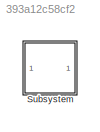
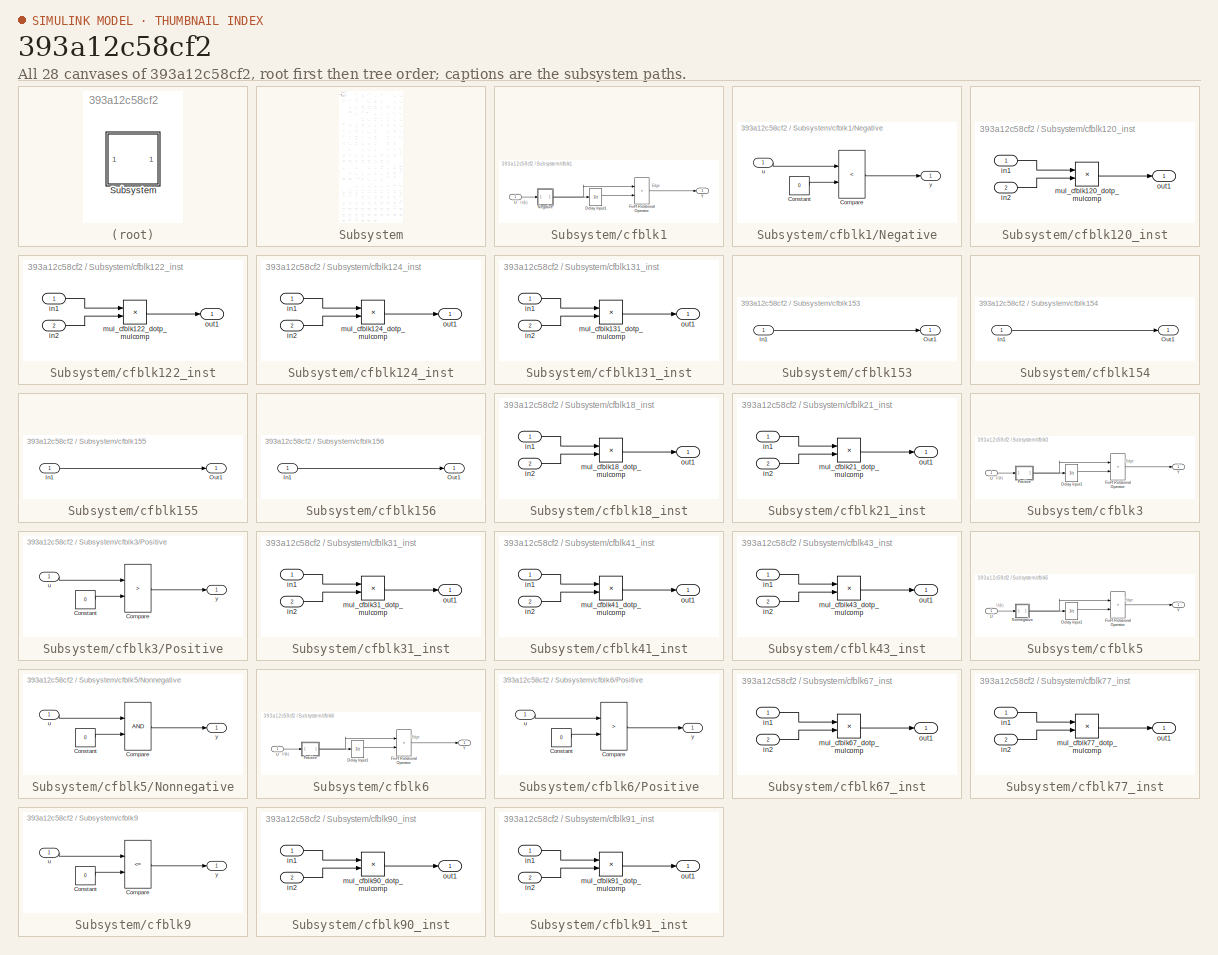
[diagram: thumbnail index - all 28 canvases of the model, root first then tree order]
MODEL slx_393a12c58cf2
KIND model
CONFIG AbsTol = auto
CONFIG EnableMultiTasking = off
CONFIG FixedStep = auto
CONFIG MaxStep = auto
CONFIG MinStep = auto
CONFIG RelTol = 1e-3
CONFIG SampleTimeConstraint = Unconstrained
CONFIG SolverName = VariableStepAuto
CONFIG StartTime = 0.0
CONFIG StopTime = 10.0
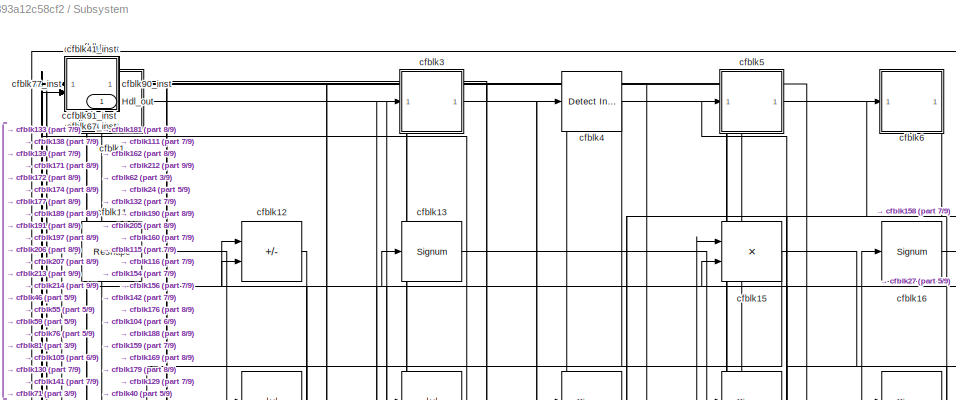
[diagram: Subsystem - part 1/9, top left region]
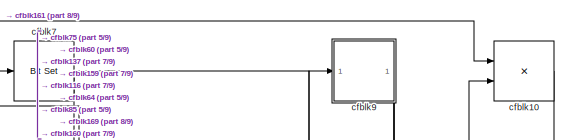
[diagram: Subsystem - part 2/9, top right region]
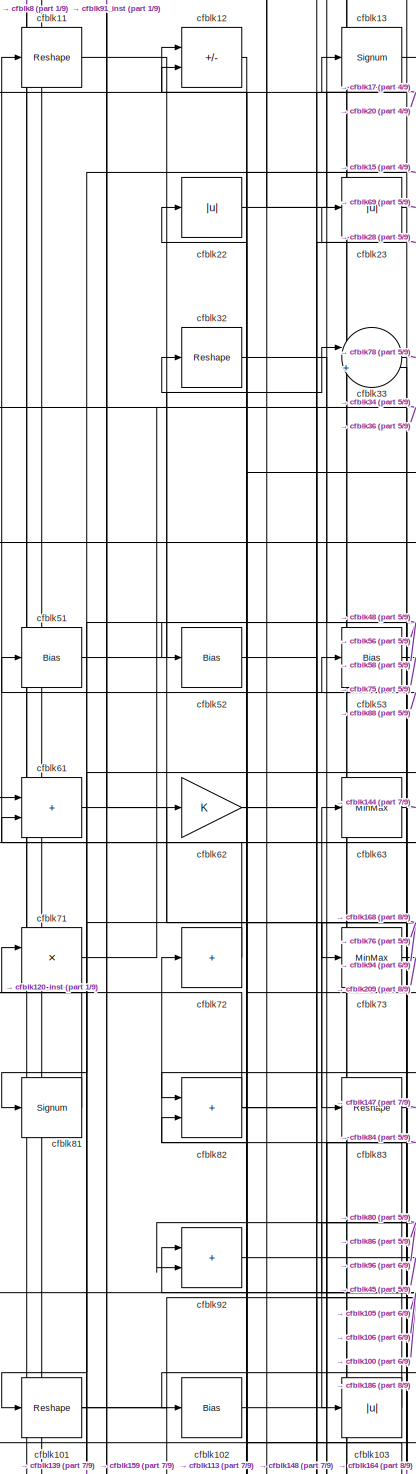
[diagram: Subsystem - part 3/9, top left region]
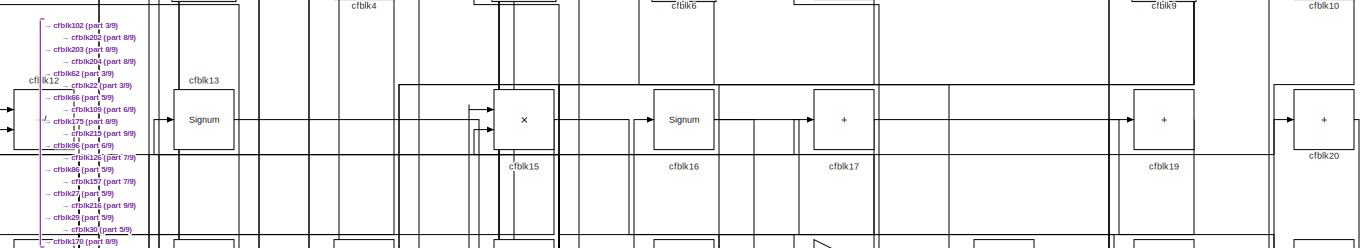
[diagram: Subsystem - part 4/9, full width, top band]
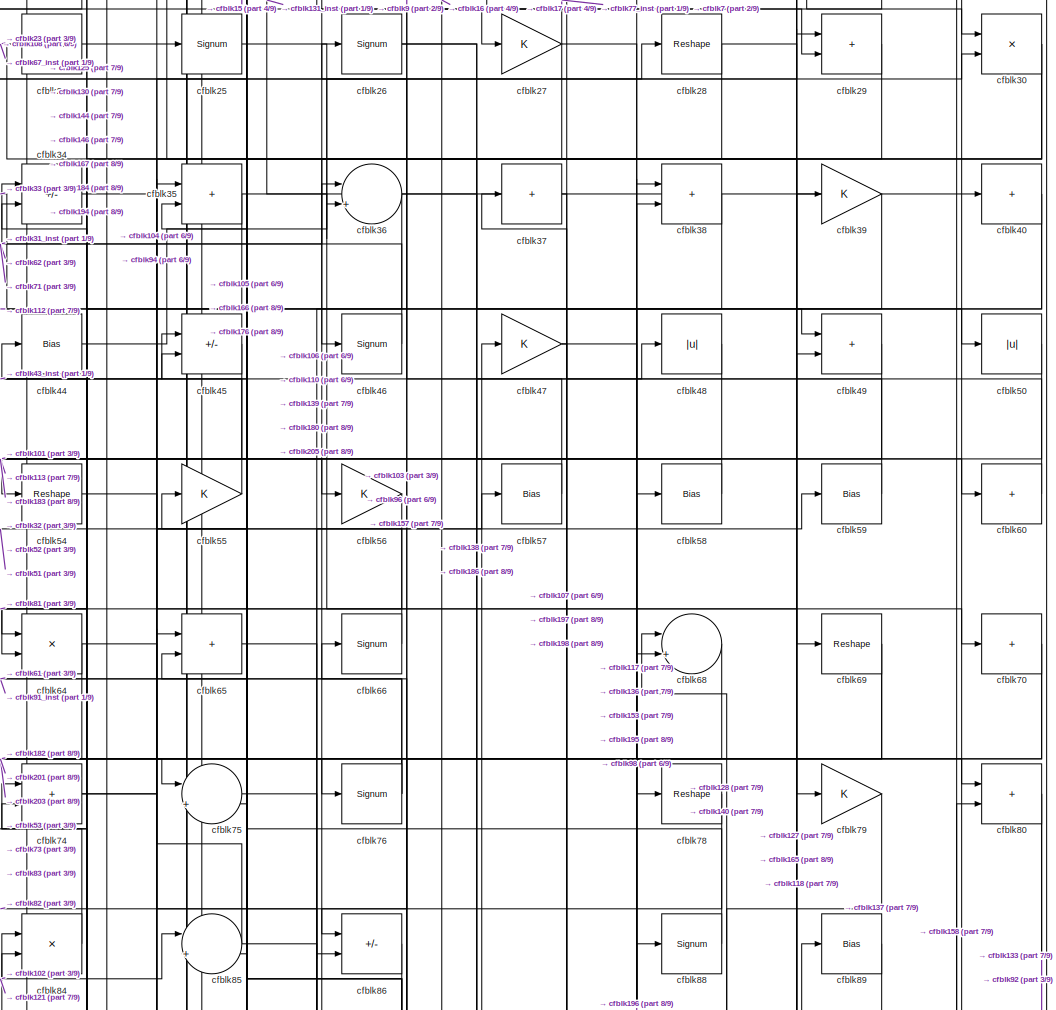
[diagram: Subsystem - part 5/9, top center region]
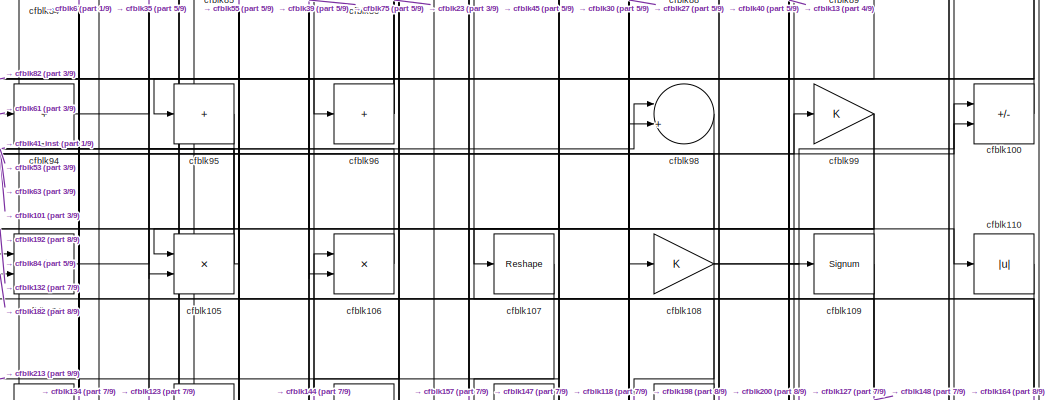
[diagram: Subsystem - part 6/9, central region]
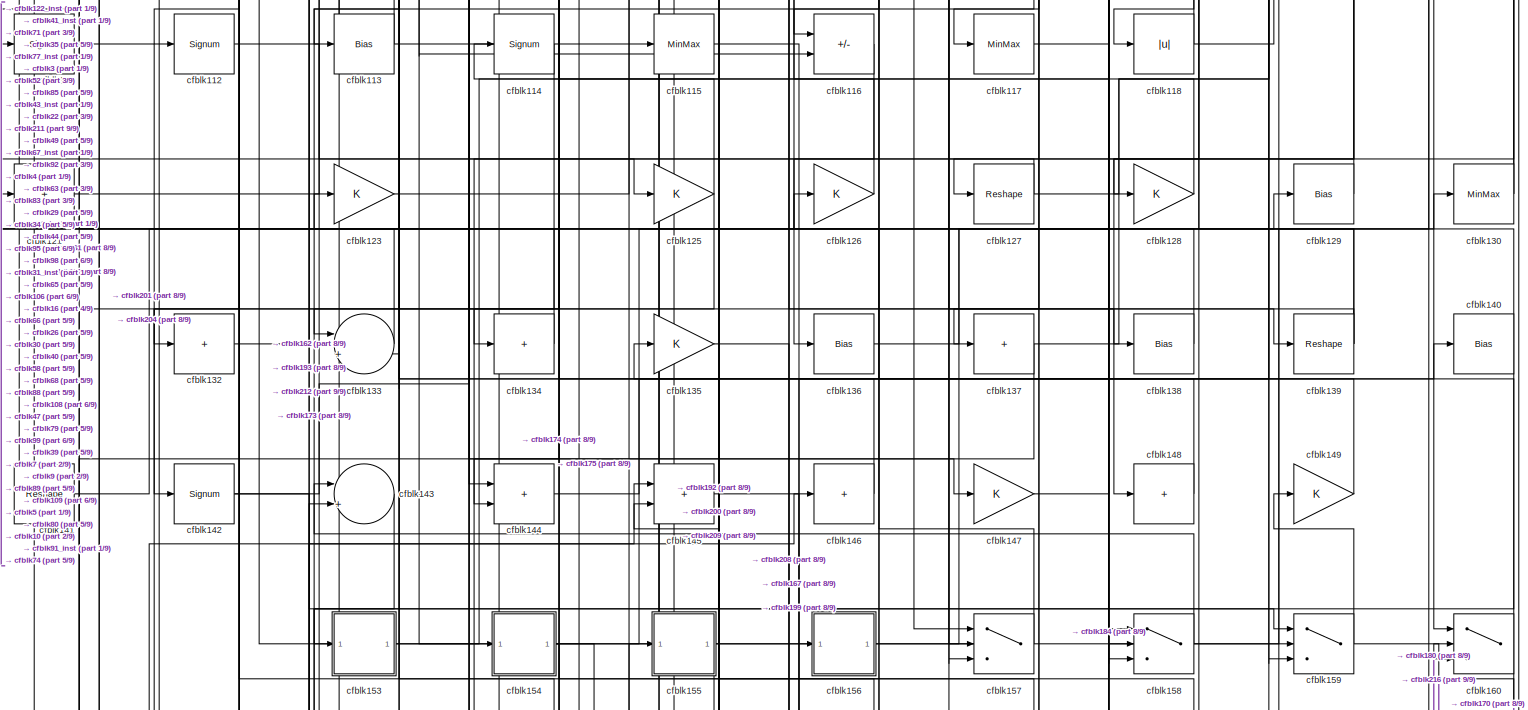
[diagram: Subsystem - part 7/9, full width, middle band]
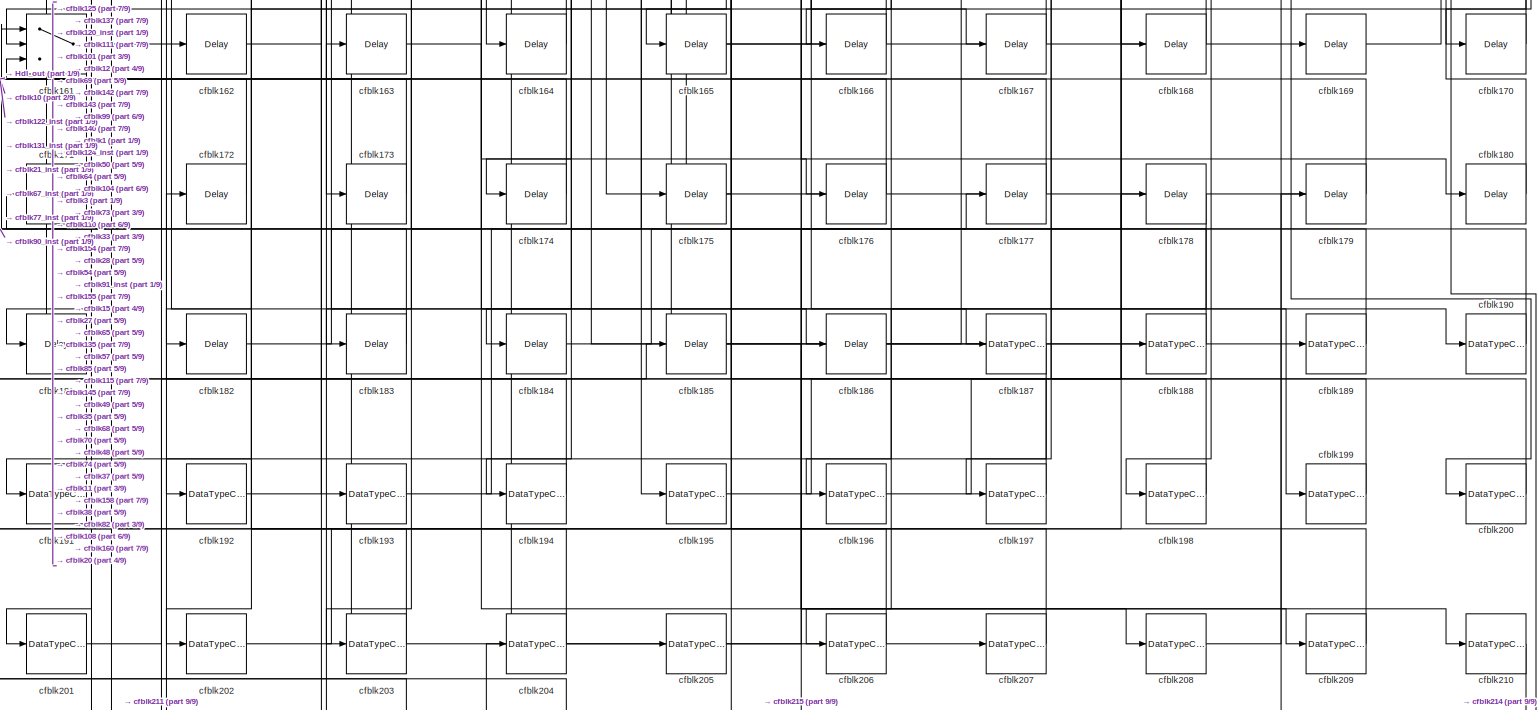
[diagram: Subsystem - part 8/9, full width, bottom band]
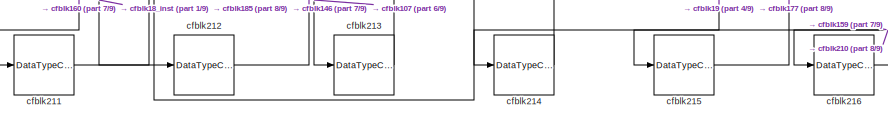
[diagram: Subsystem - part 9/9, bottom left region]
BLOCK [SubSystem] Subsystem
BLOCK [Outport] Subsystem/Hdl_out
  OutDataTypeStr = uint8
  SampleTime = 1
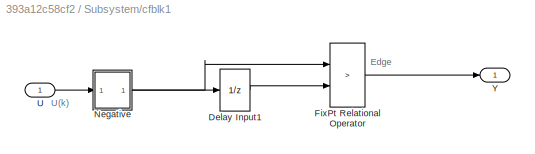
BLOCK [SubSystem] Subsystem/cfblk1
BLOCK [UnitDelay] Subsystem/cfblk1/Delay Input1
  Description = Store in Global RAM
  DisableCoverage = on
  HasFrameUpgradeWarning = on
  InitialCondition = vinit
  SampleTime = -1
BLOCK [RelationalOperator] Subsystem/cfblk1/FixPt Relational Operator
  InputSameDT = off
  Operator = >
  OutDataTypeStr = fixdt(0, 8)
  ZeroCross = off
BLOCK [SubSystem] Subsystem/cfblk1/Negative
BLOCK [RelationalOperator] Subsystem/cfblk1/Negative/Compare
  Operator = <
  OutDataTypeStr = boolean
  ZeroCross = off
BLOCK [Constant] Subsystem/cfblk1/Negative/Constant
  DisableCoverage = on
  OutDataTypeStr = Inherit: Inherit via back propagation
  PreserveConstantTs = on
  SampleTime = -1
  Value = 0
BLOCK [Inport] Subsystem/cfblk1/Negative/u
  OutDataTypeStr = uint8
  SampleTime = 1
BLOCK [Outport] Subsystem/cfblk1/Negative/y
  SampleTime = 1
BLOCK [Inport] Subsystem/cfblk1/U
  OutDataTypeStr = uint8
  SampleTime = 1
BLOCK [Outport] Subsystem/cfblk1/Y
  SampleTime = 1
BLOCK [Product] Subsystem/cfblk10
  Inputs = */
  OutDataTypeStr = uint8
  RndMeth = Zero
  SaturateOnIntegerOverflow = on
BLOCK [Sum] Subsystem/cfblk100
  IconShape = rectangular
  Inputs = +-
  OutDataTypeStr = uint8
BLOCK [Reshape] Subsystem/cfblk101
BLOCK [Bias] Subsystem/cfblk102
  Bias = 0.0
  SaturateOnIntegerOverflow = off
BLOCK [Abs] Subsystem/cfblk103
  OutDataTypeStr = uint8
  SaturateOnIntegerOverflow = off
BLOCK [Sum] Subsystem/cfblk104
  IconShape = rectangular
  Inputs = +-
  OutDataTypeStr = uint8
BLOCK [Product] Subsystem/cfblk105
  Inputs = */
  OutDataTypeStr = uint8
  RndMeth = Zero
  SaturateOnIntegerOverflow = on
BLOCK [Product] Subsystem/cfblk106
  Inputs = */
  OutDataTypeStr = uint8
  RndMeth = Zero
  SaturateOnIntegerOverflow = on
BLOCK [Reshape] Subsystem/cfblk107
BLOCK [Gain] Subsystem/cfblk108
  OutDataTypeStr = uint8
BLOCK [Signum] Subsystem/cfblk109
BLOCK [Reshape] Subsystem/cfblk11
BLOCK [Abs] Subsystem/cfblk110
  OutDataTypeStr = uint8
  SaturateOnIntegerOverflow = off
BLOCK [Signum] Subsystem/cfblk111
BLOCK [Signum] Subsystem/cfblk112
BLOCK [Bias] Subsystem/cfblk113
  Bias = 0.0
  SaturateOnIntegerOverflow = off
BLOCK [Signum] Subsystem/cfblk114
BLOCK [MinMax] Subsystem/cfblk115
  OutDataTypeStr = uint8
BLOCK [Sum] Subsystem/cfblk116
  IconShape = rectangular
  Inputs = +-
  OutDataTypeStr = uint8
BLOCK [MinMax] Subsystem/cfblk117
  OutDataTypeStr = uint8
BLOCK [Abs] Subsystem/cfblk118
  OutDataTypeStr = uint8
  SaturateOnIntegerOverflow = off
BLOCK [Sum] Subsystem/cfblk12
  IconShape = rectangular
  Inputs = +-
  OutDataTypeStr = uint8
BLOCK [SubSystem] Subsystem/cfblk120_inst
BLOCK [Inport] Subsystem/cfblk120_inst/in1
  OutDataTypeStr = uint8
  SampleTime = 1
BLOCK [Inport] Subsystem/cfblk120_inst/in2
  OutDataTypeStr = uint8
  Port = 2
  SampleTime = 1
BLOCK [Product] Subsystem/cfblk120_inst/mul_cfblk120_dotp_mulcomp
  Inputs = **
  OutDataTypeStr = uint8
  SampleTime = 1
BLOCK [Outport] Subsystem/cfblk120_inst/out1
  OutDataTypeStr = uint8
  SampleTime = 1
BLOCK [Sum] Subsystem/cfblk121
  IconShape = rectangular
  Inputs = +
  OutDataTypeStr = uint8
BLOCK [SubSystem] Subsystem/cfblk122_inst
BLOCK [Inport] Subsystem/cfblk122_inst/in1
  OutDataTypeStr = uint8
  SampleTime = 1
BLOCK [Inport] Subsystem/cfblk122_inst/in2
  OutDataTypeStr = uint8
  Port = 2
  SampleTime = 1
BLOCK [Product] Subsystem/cfblk122_inst/mul_cfblk122_dotp_mulcomp
  Inputs = **
  OutDataTypeStr = uint8
  SampleTime = 1
BLOCK [Outport] Subsystem/cfblk122_inst/out1
  OutDataTypeStr = uint8
  SampleTime = 1
BLOCK [Gain] Subsystem/cfblk123
  OutDataTypeStr = uint8
BLOCK [SubSystem] Subsystem/cfblk124_inst
BLOCK [Inport] Subsystem/cfblk124_inst/in1
  OutDataTypeStr = uint8
  SampleTime = 1
BLOCK [Inport] Subsystem/cfblk124_inst/in2
  OutDataTypeStr = uint8
  Port = 2
  SampleTime = 1
BLOCK [Product] Subsystem/cfblk124_inst/mul_cfblk124_dotp_mulcomp
  Inputs = **
  OutDataTypeStr = uint8
  SampleTime = 1
BLOCK [Outport] Subsystem/cfblk124_inst/out1
  OutDataTypeStr = uint8
  SampleTime = 1
BLOCK [Gain] Subsystem/cfblk125
  OutDataTypeStr = uint8
BLOCK [Gain] Subsystem/cfblk126
  OutDataTypeStr = uint8
BLOCK [Reshape] Subsystem/cfblk127
BLOCK [Gain] Subsystem/cfblk128
  OutDataTypeStr = uint8
BLOCK [Bias] Subsystem/cfblk129
  Bias = 0.0
  SaturateOnIntegerOverflow = off
BLOCK [Signum] Subsystem/cfblk13
BLOCK [MinMax] Subsystem/cfblk130
  OutDataTypeStr = uint8
BLOCK [SubSystem] Subsystem/cfblk131_inst
BLOCK [Inport] Subsystem/cfblk131_inst/in1
  OutDataTypeStr = uint8
  SampleTime = 1
BLOCK [Inport] Subsystem/cfblk131_inst/in2
  OutDataTypeStr = uint8
  Port = 2
  SampleTime = 1
BLOCK [Product] Subsystem/cfblk131_inst/mul_cfblk131_dotp_mulcomp
  Inputs = **
  OutDataTypeStr = uint8
  SampleTime = 1
BLOCK [Outport] Subsystem/cfblk131_inst/out1
  OutDataTypeStr = uint8
  SampleTime = 1
BLOCK [Sum] Subsystem/cfblk132
  IconShape = rectangular
  Inputs = +
  OutDataTypeStr = uint8
BLOCK [Sum] Subsystem/cfblk133
  Inputs = |++
  OutDataTypeStr = uint8
BLOCK [Sum] Subsystem/cfblk134
  IconShape = rectangular
  Inputs = +
  OutDataTypeStr = uint8
BLOCK [Gain] Subsystem/cfblk135
  OutDataTypeStr = uint8
BLOCK [Bias] Subsystem/cfblk136
  Bias = 0.0
  SaturateOnIntegerOverflow = off
BLOCK [Sum] Subsystem/cfblk137
  IconShape = rectangular
  Inputs = +
  OutDataTypeStr = uint8
BLOCK [Bias] Subsystem/cfblk138
  Bias = 0.0
  SaturateOnIntegerOverflow = off
BLOCK [Reshape] Subsystem/cfblk139
BLOCK [Bias] Subsystem/cfblk140
  Bias = 0.0
  SaturateOnIntegerOverflow = off
BLOCK [Reshape] Subsystem/cfblk141
BLOCK [Signum] Subsystem/cfblk142
BLOCK [Sum] Subsystem/cfblk143
  Inputs = |++
  OutDataTypeStr = uint8
BLOCK [Sum] Subsystem/cfblk144
  IconShape = rectangular
  OutDataTypeStr = uint8
BLOCK [Sum] Subsystem/cfblk145
  IconShape = rectangular
  OutDataTypeStr = uint8
BLOCK [Sum] Subsystem/cfblk146
  IconShape = rectangular
  Inputs = +
  OutDataTypeStr = uint8
BLOCK [Gain] Subsystem/cfblk147
  OutDataTypeStr = uint8
BLOCK [Sum] Subsystem/cfblk148
  IconShape = rectangular
  Inputs = +
  OutDataTypeStr = uint8
BLOCK [Gain] Subsystem/cfblk149
  OutDataTypeStr = uint8
BLOCK [Product] Subsystem/cfblk15
  Inputs = */
  OutDataTypeStr = uint8
  RndMeth = Zero
  SaturateOnIntegerOverflow = on
BLOCK [SubSystem] Subsystem/cfblk153
BLOCK [Inport] Subsystem/cfblk153/In1
  OutDataTypeStr = uint8
  PortDimensions = 1
  SampleTime = 1
BLOCK [Outport] Subsystem/cfblk153/Out1
  SampleTime = 1
BLOCK [SubSystem] Subsystem/cfblk154
BLOCK [Inport] Subsystem/cfblk154/In1
  OutDataTypeStr = uint8
  PortDimensions = 1
  SampleTime = 1
BLOCK [Outport] Subsystem/cfblk154/Out1
  SampleTime = 1
BLOCK [SubSystem] Subsystem/cfblk155
BLOCK [Inport] Subsystem/cfblk155/In1
  OutDataTypeStr = uint8
  PortDimensions = 1
  SampleTime = 1
BLOCK [Outport] Subsystem/cfblk155/Out1
  SampleTime = 1
BLOCK [SubSystem] Subsystem/cfblk156
BLOCK [Inport] Subsystem/cfblk156/In1
  OutDataTypeStr = uint8
  PortDimensions = 1
  SampleTime = 1
BLOCK [Outport] Subsystem/cfblk156/Out1
  SampleTime = 1
BLOCK [Switch] Subsystem/cfblk157
  InputSameDT = off
  OutDataTypeStr = uint8
  SaturateOnIntegerOverflow = off
BLOCK [Switch] Subsystem/cfblk158
  InputSameDT = off
  OutDataTypeStr = uint8
  SaturateOnIntegerOverflow = off
BLOCK [Switch] Subsystem/cfblk159
  InputSameDT = off
  OutDataTypeStr = uint8
  SaturateOnIntegerOverflow = off
BLOCK [Signum] Subsystem/cfblk16
BLOCK [Switch] Subsystem/cfblk160
  InputSameDT = off
  OutDataTypeStr = uint8
  SaturateOnIntegerOverflow = off
BLOCK [Switch] Subsystem/cfblk161
  InputSameDT = off
  OutDataTypeStr = uint8
  SaturateOnIntegerOverflow = off
BLOCK [Delay] Subsystem/cfblk162
  InputPortMap = u0
  SampleTime = 1
BLOCK [Delay] Subsystem/cfblk163
  InputPortMap = u0
  SampleTime = 1
BLOCK [Delay] Subsystem/cfblk164
  InputPortMap = u0
  SampleTime = 1
BLOCK [Delay] Subsystem/cfblk165
  InputPortMap = u0
  SampleTime = 1
BLOCK [Delay] Subsystem/cfblk166
  InputPortMap = u0
  SampleTime = 1
BLOCK [Delay] Subsystem/cfblk167
  InputPortMap = u0
  SampleTime = 1
BLOCK [Delay] Subsystem/cfblk168
  InputPortMap = u0
  SampleTime = 1
BLOCK [Delay] Subsystem/cfblk169
  InputPortMap = u0
  SampleTime = 1
BLOCK [Sum] Subsystem/cfblk17
  IconShape = rectangular
  Inputs = +
  OutDataTypeStr = uint8
BLOCK [Delay] Subsystem/cfblk170
  InputPortMap = u0
  SampleTime = 1
BLOCK [Delay] Subsystem/cfblk171
  InputPortMap = u0
  SampleTime = 1
BLOCK [Delay] Subsystem/cfblk172
  InputPortMap = u0
  SampleTime = 1
BLOCK [Delay] Subsystem/cfblk173
  InputPortMap = u0
  SampleTime = 1
BLOCK [Delay] Subsystem/cfblk174
  InputPortMap = u0
  SampleTime = 1
BLOCK [Delay] Subsystem/cfblk175
  InputPortMap = u0
  SampleTime = 1
BLOCK [Delay] Subsystem/cfblk176
  InputPortMap = u0
  SampleTime = 1
BLOCK [Delay] Subsystem/cfblk177
  InputPortMap = u0
  SampleTime = 1
BLOCK [Delay] Subsystem/cfblk178
  InputPortMap = u0
  SampleTime = 1
BLOCK [Delay] Subsystem/cfblk179
  InputPortMap = u0
  SampleTime = 1
BLOCK [Delay] Subsystem/cfblk180
  InputPortMap = u0
  SampleTime = 1
BLOCK [Delay] Subsystem/cfblk181
  InputPortMap = u0
  SampleTime = 1
BLOCK [Delay] Subsystem/cfblk182
  InputPortMap = u0
  SampleTime = 1
BLOCK [Delay] Subsystem/cfblk183
  InputPortMap = u0
  SampleTime = 1
BLOCK [Delay] Subsystem/cfblk184
  InputPortMap = u0
  SampleTime = 1
BLOCK [Delay] Subsystem/cfblk185
  InputPortMap = u0
  SampleTime = 1
BLOCK [Delay] Subsystem/cfblk186
  InputPortMap = u0
  SampleTime = 1
BLOCK [DataTypeConversion] Subsystem/cfblk187
  OutDataTypeStr = uint8
  RndMeth = Floor
  SaturateOnIntegerOverflow = off
BLOCK [DataTypeConversion] Subsystem/cfblk188
  OutDataTypeStr = uint8
  RndMeth = Floor
  SaturateOnIntegerOverflow = off
BLOCK [DataTypeConversion] Subsystem/cfblk189
  OutDataTypeStr = uint8
  RndMeth = Floor
  SaturateOnIntegerOverflow = off
BLOCK [SubSystem] Subsystem/cfblk18_inst
BLOCK [Inport] Subsystem/cfblk18_inst/in1
  OutDataTypeStr = uint8
  SampleTime = 1
BLOCK [Inport] Subsystem/cfblk18_inst/in2
  OutDataTypeStr = uint8
  Port = 2
  SampleTime = 1
BLOCK [Product] Subsystem/cfblk18_inst/mul_cfblk18_dotp_mulcomp
  Inputs = **
  OutDataTypeStr = uint8
  SampleTime = 1
BLOCK [Outport] Subsystem/cfblk18_inst/out1
  OutDataTypeStr = uint8
  SampleTime = 1
BLOCK [Sum] Subsystem/cfblk19
  IconShape = rectangular
  Inputs = +
  OutDataTypeStr = uint8
BLOCK [DataTypeConversion] Subsystem/cfblk190
  OutDataTypeStr = uint8
  RndMeth = Floor
  SaturateOnIntegerOverflow = off
BLOCK [DataTypeConversion] Subsystem/cfblk191
  OutDataTypeStr = uint8
  RndMeth = Floor
  SaturateOnIntegerOverflow = off
BLOCK [DataTypeConversion] Subsystem/cfblk192
  OutDataTypeStr = uint8
  RndMeth = Floor
  SaturateOnIntegerOverflow = off
BLOCK [DataTypeConversion] Subsystem/cfblk193
  OutDataTypeStr = uint8
  RndMeth = Floor
  SaturateOnIntegerOverflow = off
BLOCK [DataTypeConversion] Subsystem/cfblk194
  OutDataTypeStr = uint8
  RndMeth = Floor
  SaturateOnIntegerOverflow = off
BLOCK [DataTypeConversion] Subsystem/cfblk195
  OutDataTypeStr = uint8
  RndMeth = Floor
  SaturateOnIntegerOverflow = off
BLOCK [DataTypeConversion] Subsystem/cfblk196
  OutDataTypeStr = uint8
  RndMeth = Floor
  SaturateOnIntegerOverflow = off
BLOCK [DataTypeConversion] Subsystem/cfblk197
  OutDataTypeStr = uint8
  RndMeth = Floor
  SaturateOnIntegerOverflow = off
BLOCK [DataTypeConversion] Subsystem/cfblk198
  OutDataTypeStr = uint8
  RndMeth = Floor
  SaturateOnIntegerOverflow = off
BLOCK [DataTypeConversion] Subsystem/cfblk199
  OutDataTypeStr = uint8
  RndMeth = Floor
  SaturateOnIntegerOverflow = off
BLOCK [Sum] Subsystem/cfblk20
  IconShape = rectangular
  Inputs = +
  OutDataTypeStr = uint8
BLOCK [DataTypeConversion] Subsystem/cfblk200
  OutDataTypeStr = uint8
  RndMeth = Floor
  SaturateOnIntegerOverflow = off
BLOCK [DataTypeConversion] Subsystem/cfblk201
  OutDataTypeStr = uint8
  RndMeth = Floor
  SaturateOnIntegerOverflow = off
BLOCK [DataTypeConversion] Subsystem/cfblk202
  OutDataTypeStr = uint8
  RndMeth = Floor
  SaturateOnIntegerOverflow = off
BLOCK [DataTypeConversion] Subsystem/cfblk203
  OutDataTypeStr = uint8
  RndMeth = Floor
  SaturateOnIntegerOverflow = off
BLOCK [DataTypeConversion] Subsystem/cfblk204
  OutDataTypeStr = uint8
  RndMeth = Floor
  SaturateOnIntegerOverflow = off
BLOCK [DataTypeConversion] Subsystem/cfblk205
  OutDataTypeStr = uint8
  RndMeth = Floor
  SaturateOnIntegerOverflow = off
BLOCK [DataTypeConversion] Subsystem/cfblk206
  OutDataTypeStr = uint8
  RndMeth = Floor
  SaturateOnIntegerOverflow = off
BLOCK [DataTypeConversion] Subsystem/cfblk207
  OutDataTypeStr = uint8
  RndMeth = Floor
  SaturateOnIntegerOverflow = off
BLOCK [DataTypeConversion] Subsystem/cfblk208
  OutDataTypeStr = uint8
  RndMeth = Floor
  SaturateOnIntegerOverflow = off
BLOCK [DataTypeConversion] Subsystem/cfblk209
  OutDataTypeStr = uint8
  RndMeth = Floor
  SaturateOnIntegerOverflow = off
BLOCK [DataTypeConversion] Subsystem/cfblk210
  OutDataTypeStr = uint8
  RndMeth = Floor
  SaturateOnIntegerOverflow = off
BLOCK [DataTypeConversion] Subsystem/cfblk211
  OutDataTypeStr = uint8
  RndMeth = Floor
  SaturateOnIntegerOverflow = off
BLOCK [DataTypeConversion] Subsystem/cfblk212
  OutDataTypeStr = uint8
  RndMeth = Floor
  SaturateOnIntegerOverflow = off
BLOCK [DataTypeConversion] Subsystem/cfblk213
  OutDataTypeStr = uint8
  RndMeth = Floor
  SaturateOnIntegerOverflow = off
BLOCK [DataTypeConversion] Subsystem/cfblk214
  OutDataTypeStr = uint8
  RndMeth = Floor
  SaturateOnIntegerOverflow = off
BLOCK [DataTypeConversion] Subsystem/cfblk215
  OutDataTypeStr = uint8
  RndMeth = Floor
  SaturateOnIntegerOverflow = off
BLOCK [DataTypeConversion] Subsystem/cfblk216
  OutDataTypeStr = uint8
  RndMeth = Floor
  SaturateOnIntegerOverflow = off
BLOCK [SubSystem] Subsystem/cfblk21_inst
BLOCK [Inport] Subsystem/cfblk21_inst/in1
  OutDataTypeStr = uint8
  SampleTime = 1
BLOCK [Inport] Subsystem/cfblk21_inst/in2
  OutDataTypeStr = uint8
  Port = 2
  SampleTime = 1
BLOCK [Product] Subsystem/cfblk21_inst/mul_cfblk21_dotp_mulcomp
  Inputs = **
  OutDataTypeStr = uint8
  SampleTime = 1
BLOCK [Outport] Subsystem/cfblk21_inst/out1
  OutDataTypeStr = uint8
  SampleTime = 1
BLOCK [Abs] Subsystem/cfblk22
  OutDataTypeStr = uint8
  SaturateOnIntegerOverflow = off
BLOCK [Abs] Subsystem/cfblk23
  OutDataTypeStr = uint8
  SaturateOnIntegerOverflow = off
BLOCK [Signum] Subsystem/cfblk24
BLOCK [Signum] Subsystem/cfblk25
BLOCK [Signum] Subsystem/cfblk26
BLOCK [Gain] Subsystem/cfblk27
  OutDataTypeStr = uint8
BLOCK [Reshape] Subsystem/cfblk28
BLOCK [Sum] Subsystem/cfblk29
  IconShape = rectangular
  OutDataTypeStr = uint8
BLOCK [SubSystem] Subsystem/cfblk3
BLOCK [UnitDelay] Subsystem/cfblk3/Delay Input1
  Description = Store in Global RAM
  DisableCoverage = on
  HasFrameUpgradeWarning = on
  InitialCondition = vinit
  SampleTime = -1
BLOCK [RelationalOperator] Subsystem/cfblk3/FixPt Relational Operator
  InputSameDT = off
  Operator = >
  OutDataTypeStr = fixdt(0, 8)
  ZeroCross = off
BLOCK [SubSystem] Subsystem/cfblk3/Positive
BLOCK [RelationalOperator] Subsystem/cfblk3/Positive/Compare
  Operator = >
  OutDataTypeStr = boolean
  ZeroCross = off
BLOCK [Constant] Subsystem/cfblk3/Positive/Constant
  DisableCoverage = on
  OutDataTypeStr = Inherit: Inherit via back propagation
  PreserveConstantTs = on
  SampleTime = -1
  Value = 0
BLOCK [Inport] Subsystem/cfblk3/Positive/u
  OutDataTypeStr = uint8
  SampleTime = 1
BLOCK [Outport] Subsystem/cfblk3/Positive/y
  SampleTime = 1
BLOCK [Inport] Subsystem/cfblk3/U
  OutDataTypeStr = uint8
  SampleTime = 1
BLOCK [Outport] Subsystem/cfblk3/Y
  SampleTime = 1
BLOCK [Product] Subsystem/cfblk30
  Inputs = */
  OutDataTypeStr = uint8
  RndMeth = Zero
  SaturateOnIntegerOverflow = on
BLOCK [SubSystem] Subsystem/cfblk31_inst
BLOCK [Inport] Subsystem/cfblk31_inst/in1
  OutDataTypeStr = uint8
  SampleTime = 1
BLOCK [Inport] Subsystem/cfblk31_inst/in2
  OutDataTypeStr = uint8
  Port = 2
  SampleTime = 1
BLOCK [Product] Subsystem/cfblk31_inst/mul_cfblk31_dotp_mulcomp
  Inputs = **
  OutDataTypeStr = uint8
  SampleTime = 1
BLOCK [Outport] Subsystem/cfblk31_inst/out1
  OutDataTypeStr = uint8
  SampleTime = 1
BLOCK [Reshape] Subsystem/cfblk32
BLOCK [Sum] Subsystem/cfblk33
  Inputs = |++
  OutDataTypeStr = uint8
BLOCK [Sum] Subsystem/cfblk34
  IconShape = rectangular
  Inputs = +-
  OutDataTypeStr = uint8
BLOCK [Sum] Subsystem/cfblk35
  IconShape = rectangular
  OutDataTypeStr = uint8
BLOCK [Sum] Subsystem/cfblk36
  Inputs = |++
  OutDataTypeStr = uint8
BLOCK [Sum] Subsystem/cfblk37
  IconShape = rectangular
  Inputs = +
  OutDataTypeStr = uint8
BLOCK [Sum] Subsystem/cfblk38
  IconShape = rectangular
  OutDataTypeStr = uint8
BLOCK [Gain] Subsystem/cfblk39
  OutDataTypeStr = uint8
BLOCK [Reference] Subsystem/cfblk4  REF=simulink/Logic and Bit
Operations/Detect
Increase
  LibrarySourceBlock = hdlsllib/Logic and Bit\nOperations/Detect\nIncrease
  SourceBlock = simulink/Logic and Bit\nOperations/Detect\nIncrease
  SourceType = Detect Increase
BLOCK [Sum] Subsystem/cfblk40
  IconShape = rectangular
  Inputs = +
  OutDataTypeStr = uint8
BLOCK [SubSystem] Subsystem/cfblk41_inst
BLOCK [Inport] Subsystem/cfblk41_inst/in1
  OutDataTypeStr = uint8
  SampleTime = 1
BLOCK [Inport] Subsystem/cfblk41_inst/in2
  OutDataTypeStr = uint8
  Port = 2
  SampleTime = 1
BLOCK [Product] Subsystem/cfblk41_inst/mul_cfblk41_dotp_mulcomp
  Inputs = **
  OutDataTypeStr = uint8
  SampleTime = 1
BLOCK [Outport] Subsystem/cfblk41_inst/out1
  OutDataTypeStr = uint8
  SampleTime = 1
BLOCK [SubSystem] Subsystem/cfblk43_inst
BLOCK [Inport] Subsystem/cfblk43_inst/in1
  OutDataTypeStr = uint8
  SampleTime = 1
BLOCK [Inport] Subsystem/cfblk43_inst/in2
  OutDataTypeStr = uint8
  Port = 2
  SampleTime = 1
BLOCK [Product] Subsystem/cfblk43_inst/mul_cfblk43_dotp_mulcomp
  Inputs = **
  OutDataTypeStr = uint8
  SampleTime = 1
BLOCK [Outport] Subsystem/cfblk43_inst/out1
  OutDataTypeStr = uint8
  SampleTime = 1
BLOCK [Bias] Subsystem/cfblk44
  Bias = 0.0
  SaturateOnIntegerOverflow = off
BLOCK [Sum] Subsystem/cfblk45
  IconShape = rectangular
  Inputs = +-
  OutDataTypeStr = uint8
BLOCK [Signum] Subsystem/cfblk46
BLOCK [Gain] Subsystem/cfblk47
  OutDataTypeStr = uint8
BLOCK [Abs] Subsystem/cfblk48
  OutDataTypeStr = uint8
  SaturateOnIntegerOverflow = off
BLOCK [Sum] Subsystem/cfblk49
  IconShape = rectangular
  OutDataTypeStr = uint8
BLOCK [SubSystem] Subsystem/cfblk5
BLOCK [UnitDelay] Subsystem/cfblk5/Delay Input1
  Description = Store in Global RAM
  DisableCoverage = on
  HasFrameUpgradeWarning = on
  InitialCondition = vinit
  SampleTime = -1
BLOCK [RelationalOperator] Subsystem/cfblk5/FixPt Relational Operator
  InputSameDT = off
  Operator = >
  OutDataTypeStr = fixdt(0, 8)
  ZeroCross = off
BLOCK [SubSystem] Subsystem/cfblk5/Nonnegative
BLOCK [RelationalOperator] Subsystem/cfblk5/Nonnegative/Compare
  OutDataTypeStr = boolean
  ZeroCross = off
BLOCK [Constant] Subsystem/cfblk5/Nonnegative/Constant
  DisableCoverage = on
  OutDataTypeStr = Inherit: Inherit via back propagation
  PreserveConstantTs = on
  SampleTime = -1
  Value = 0
BLOCK [Inport] Subsystem/cfblk5/Nonnegative/u
  OutDataTypeStr = uint8
  SampleTime = 1
BLOCK [Outport] Subsystem/cfblk5/Nonnegative/y
  SampleTime = 1
BLOCK [Inport] Subsystem/cfblk5/U
  OutDataTypeStr = uint8
  SampleTime = 1
BLOCK [Outport] Subsystem/cfblk5/Y
  SampleTime = 1
BLOCK [Abs] Subsystem/cfblk50
  OutDataTypeStr = uint8
  SaturateOnIntegerOverflow = off
BLOCK [Bias] Subsystem/cfblk51
  Bias = 0.0
  SaturateOnIntegerOverflow = off
BLOCK [Bias] Subsystem/cfblk52
  Bias = 0.0
  SaturateOnIntegerOverflow = off
BLOCK [Bias] Subsystem/cfblk53
  Bias = 0.0
  SaturateOnIntegerOverflow = off
BLOCK [Reshape] Subsystem/cfblk54
BLOCK [Gain] Subsystem/cfblk55
  OutDataTypeStr = uint8
BLOCK [Gain] Subsystem/cfblk56
  OutDataTypeStr = uint8
BLOCK [Bias] Subsystem/cfblk57
  Bias = 0.0
  SaturateOnIntegerOverflow = off
BLOCK [Bias] Subsystem/cfblk58
  Bias = 0.0
  SaturateOnIntegerOverflow = off
BLOCK [Bias] Subsystem/cfblk59
  Bias = 0.0
  SaturateOnIntegerOverflow = off
BLOCK [SubSystem] Subsystem/cfblk6
BLOCK [UnitDelay] Subsystem/cfblk6/Delay Input1
  Description = Store in Global RAM
  DisableCoverage = on
  HasFrameUpgradeWarning = on
  InitialCondition = vinit
  SampleTime = -1
BLOCK [RelationalOperator] Subsystem/cfblk6/FixPt Relational Operator
  InputSameDT = off
  Operator = >
  OutDataTypeStr = fixdt(0, 8)
  ZeroCross = off
BLOCK [SubSystem] Subsystem/cfblk6/Positive
BLOCK [RelationalOperator] Subsystem/cfblk6/Positive/Compare
  Operator = >
  OutDataTypeStr = boolean
  ZeroCross = off
BLOCK [Constant] Subsystem/cfblk6/Positive/Constant
  DisableCoverage = on
  OutDataTypeStr = Inherit: Inherit via back propagation
  PreserveConstantTs = on
  SampleTime = -1
  Value = 0
BLOCK [Inport] Subsystem/cfblk6/Positive/u
  OutDataTypeStr = uint8
  SampleTime = 1
BLOCK [Outport] Subsystem/cfblk6/Positive/y
  SampleTime = 1
BLOCK [Inport] Subsystem/cfblk6/U
  OutDataTypeStr = uint8
  SampleTime = 1
BLOCK [Outport] Subsystem/cfblk6/Y
  SampleTime = 1
BLOCK [Sum] Subsystem/cfblk60
  IconShape = rectangular
  Inputs = +
  OutDataTypeStr = uint8
BLOCK [Sum] Subsystem/cfblk61
  IconShape = rectangular
  OutDataTypeStr = uint8
BLOCK [Gain] Subsystem/cfblk62
  OutDataTypeStr = uint8
BLOCK [MinMax] Subsystem/cfblk63
  OutDataTypeStr = uint8
BLOCK [Product] Subsystem/cfblk64
  Inputs = */
  OutDataTypeStr = uint8
  RndMeth = Zero
  SaturateOnIntegerOverflow = on
BLOCK [Sum] Subsystem/cfblk65
  IconShape = rectangular
  OutDataTypeStr = uint8
BLOCK [Signum] Subsystem/cfblk66
BLOCK [SubSystem] Subsystem/cfblk67_inst
BLOCK [Inport] Subsystem/cfblk67_inst/in1
  OutDataTypeStr = uint8
  SampleTime = 1
BLOCK [Inport] Subsystem/cfblk67_inst/in2
  OutDataTypeStr = uint8
  Port = 2
  SampleTime = 1
BLOCK [Product] Subsystem/cfblk67_inst/mul_cfblk67_dotp_mulcomp
  Inputs = **
  OutDataTypeStr = uint8
  SampleTime = 1
BLOCK [Outport] Subsystem/cfblk67_inst/out1
  OutDataTypeStr = uint8
  SampleTime = 1
BLOCK [Sum] Subsystem/cfblk68
  Inputs = |++
  OutDataTypeStr = uint8
BLOCK [Reshape] Subsystem/cfblk69
BLOCK [Reference] Subsystem/cfblk7  REF=simulink/Logic and Bit
Operations/Bit Set
  LibrarySourceBlock = hdlsllib/Logic and Bit\nOperations/Bit Set
  SourceBlock = simulink/Logic and Bit\nOperations/Bit Set
  SourceType = Bit Set
BLOCK [Sum] Subsystem/cfblk70
  IconShape = rectangular
  Inputs = +
  OutDataTypeStr = uint8
BLOCK [Product] Subsystem/cfblk71
  Inputs = */
  OutDataTypeStr = uint8
  RndMeth = Zero
  SaturateOnIntegerOverflow = on
BLOCK [Sum] Subsystem/cfblk72
  IconShape = rectangular
  Inputs = +
  OutDataTypeStr = uint8
BLOCK [MinMax] Subsystem/cfblk73
  OutDataTypeStr = uint8
BLOCK [Sum] Subsystem/cfblk74
  IconShape = rectangular
  OutDataTypeStr = uint8
BLOCK [Sum] Subsystem/cfblk75
  Inputs = |++
  OutDataTypeStr = uint8
BLOCK [Signum] Subsystem/cfblk76
BLOCK [SubSystem] Subsystem/cfblk77_inst
BLOCK [Inport] Subsystem/cfblk77_inst/in1
  OutDataTypeStr = uint8
  SampleTime = 1
BLOCK [Inport] Subsystem/cfblk77_inst/in2
  OutDataTypeStr = uint8
  Port = 2
  SampleTime = 1
BLOCK [Product] Subsystem/cfblk77_inst/mul_cfblk77_dotp_mulcomp
  Inputs = **
  OutDataTypeStr = uint8
  SampleTime = 1
BLOCK [Outport] Subsystem/cfblk77_inst/out1
  OutDataTypeStr = uint8
  SampleTime = 1
BLOCK [Reshape] Subsystem/cfblk78
BLOCK [Gain] Subsystem/cfblk79
  OutDataTypeStr = uint8
BLOCK [Constant] Subsystem/cfblk8
  OutDataTypeStr = uint8
  SampleTime = 1
  Value = 0
BLOCK [Sum] Subsystem/cfblk80
  IconShape = rectangular
  OutDataTypeStr = uint8
BLOCK [Signum] Subsystem/cfblk81
BLOCK [Sum] Subsystem/cfblk82
  IconShape = rectangular
  OutDataTypeStr = uint8
BLOCK [Reshape] Subsystem/cfblk83
BLOCK [Product] Subsystem/cfblk84
  Inputs = */
  OutDataTypeStr = uint8
  RndMeth = Zero
  SaturateOnIntegerOverflow = on
BLOCK [Sum] Subsystem/cfblk85
  Inputs = |++
  OutDataTypeStr = uint8
BLOCK [Sum] Subsystem/cfblk86
  IconShape = rectangular
  Inputs = +-
  OutDataTypeStr = uint8
BLOCK [Signum] Subsystem/cfblk88
BLOCK [Bias] Subsystem/cfblk89
  Bias = 0.0
  SaturateOnIntegerOverflow = off
BLOCK [SubSystem] Subsystem/cfblk9
BLOCK [RelationalOperator] Subsystem/cfblk9/Compare
  Operator = <=
  OutDataTypeStr = fixdt(0, 8)
BLOCK [Constant] Subsystem/cfblk9/Constant
  DisableCoverage = on
  OutDataTypeStr = Inherit: Inherit via back propagation
  PreserveConstantTs = on
  SampleTime = -1
  Value = 0
BLOCK [Inport] Subsystem/cfblk9/u
  OutDataTypeStr = uint8
  SampleTime = 1
BLOCK [Outport] Subsystem/cfblk9/y
  SampleTime = 1
BLOCK [SubSystem] Subsystem/cfblk90_inst
BLOCK [Inport] Subsystem/cfblk90_inst/in1
  OutDataTypeStr = uint8
  SampleTime = 1
BLOCK [Inport] Subsystem/cfblk90_inst/in2
  OutDataTypeStr = uint8
  Port = 2
  SampleTime = 1
BLOCK [Product] Subsystem/cfblk90_inst/mul_cfblk90_dotp_mulcomp
  Inputs = **
  OutDataTypeStr = uint8
  SampleTime = 1
BLOCK [Outport] Subsystem/cfblk90_inst/out1
  OutDataTypeStr = uint8
  SampleTime = 1
BLOCK [SubSystem] Subsystem/cfblk91_inst
BLOCK [Inport] Subsystem/cfblk91_inst/in1
  OutDataTypeStr = uint8
  SampleTime = 1
BLOCK [Inport] Subsystem/cfblk91_inst/in2
  OutDataTypeStr = uint8
  Port = 2
  SampleTime = 1
BLOCK [Product] Subsystem/cfblk91_inst/mul_cfblk91_dotp_mulcomp
  Inputs = **
  OutDataTypeStr = uint8
  SampleTime = 1
BLOCK [Outport] Subsystem/cfblk91_inst/out1
  OutDataTypeStr = uint8
  SampleTime = 1
BLOCK [Sum] Subsystem/cfblk92
  IconShape = rectangular
  OutDataTypeStr = uint8
BLOCK [Sum] Subsystem/cfblk94
  IconShape = rectangular
  Inputs = +
  OutDataTypeStr = uint8
BLOCK [Sum] Subsystem/cfblk95
  IconShape = rectangular
  Inputs = +
  OutDataTypeStr = uint8
BLOCK [Sum] Subsystem/cfblk96
  IconShape = rectangular
  Inputs = +
  OutDataTypeStr = uint8
BLOCK [Sum] Subsystem/cfblk98
  Inputs = |++
  OutDataTypeStr = uint8
BLOCK [Gain] Subsystem/cfblk99
  OutDataTypeStr = uint8
ANNOTATION Subsystem/cfblk1: Edge
ANNOTATION Subsystem/cfblk1: U(k)
ANNOTATION Subsystem/cfblk3: Edge
ANNOTATION Subsystem/cfblk3: U(k)
ANNOTATION Subsystem/cfblk5: Edge
ANNOTATION Subsystem/cfblk5: U(k)
ANNOTATION Subsystem/cfblk6: Edge
ANNOTATION Subsystem/cfblk6: U(k)
LINE Subsystem/cfblk100:1 -> Subsystem/cfblk95:1
NET Subsystem/cfblk101:1 -> Subsystem/cfblk100:1, Subsystem/cfblk186:1
LINE Subsystem/cfblk102:1 -> Subsystem/cfblk84:1
LINE Subsystem/cfblk103:1 -> Subsystem/cfblk72:1
LINE Subsystem/cfblk104:1 -> Subsystem/cfblk35:1
NET Subsystem/cfblk105:1 -> Subsystem/cfblk41_inst:1, Subsystem/cfblk55:1, Subsystem/cfblk63:1
LINE Subsystem/cfblk106:1 -> Subsystem/cfblk53:1
LINE Subsystem/cfblk107:1 -> Subsystem/cfblk213:1
NET Subsystem/cfblk108:1 -> Subsystem/cfblk100:2, Subsystem/cfblk118:1, Subsystem/cfblk200:1, Subsystem/cfblk84:2
NET Subsystem/cfblk109:1 -> Subsystem/cfblk105:1, Subsystem/cfblk127:1, Subsystem/cfblk148:1
LINE Subsystem/cfblk10:1 -> Subsystem/cfblk160:1
LINE Subsystem/cfblk110:1 -> Subsystem/cfblk164:1
LINE Subsystem/cfblk111:1 -> Subsystem/cfblk204:1
LINE Subsystem/cfblk112:1 -> Subsystem/cfblk125:1
LINE Subsystem/cfblk113:1 -> Subsystem/cfblk22:1
LINE Subsystem/cfblk114:1 -> Subsystem/cfblk142:1
LINE Subsystem/cfblk115:1 -> Subsystem/cfblk167:1
LINE Subsystem/cfblk116:1 -> Subsystem/cfblk136:1
LINE Subsystem/cfblk117:1 -> Subsystem/cfblk58:1
NET Subsystem/cfblk118:1 -> Subsystem/cfblk47:1, Subsystem/cfblk89:1
LINE Subsystem/cfblk11:1 -> Subsystem/cfblk168:1
LINE Subsystem/cfblk120_inst/in1:1 -> Subsystem/cfblk120_inst/mul_cfblk120_dotp_mulcomp:1
LINE Subsystem/cfblk120_inst/in2:1 -> Subsystem/cfblk120_inst/mul_cfblk120_dotp_mulcomp:2
LINE Subsystem/cfblk120_inst/mul_cfblk120_dotp_mulcomp:1 -> Subsystem/cfblk120_inst/out1:1
NET Subsystem/cfblk120_inst:1 -> Subsystem/cfblk162:1, Subsystem/cfblk188:1
LINE Subsystem/cfblk121:1 -> Subsystem/cfblk85:1
LINE Subsystem/cfblk122_inst/in1:1 -> Subsystem/cfblk122_inst/mul_cfblk122_dotp_mulcomp:1
LINE Subsystem/cfblk122_inst/in2:1 -> Subsystem/cfblk122_inst/mul_cfblk122_dotp_mulcomp:2
LINE Subsystem/cfblk122_inst/mul_cfblk122_dotp_mulcomp:1 -> Subsystem/cfblk122_inst/out1:1
LINE Subsystem/cfblk122_inst:1 -> Subsystem/cfblk141:1
LINE Subsystem/cfblk123:1 -> Subsystem/cfblk98:1
LINE Subsystem/cfblk124_inst/in1:1 -> Subsystem/cfblk124_inst/mul_cfblk124_dotp_mulcomp:1
LINE Subsystem/cfblk124_inst/in2:1 -> Subsystem/cfblk124_inst/mul_cfblk124_dotp_mulcomp:2
LINE Subsystem/cfblk124_inst/mul_cfblk124_dotp_mulcomp:1 -> Subsystem/cfblk124_inst/out1:1
LINE Subsystem/cfblk124_inst:1 -> Subsystem/cfblk205:1
NET Subsystem/cfblk125:1 -> Subsystem/cfblk161:2, Subsystem/cfblk44:1
LINE Subsystem/cfblk126:1 -> Subsystem/cfblk16:1
NET Subsystem/cfblk127:1 -> Subsystem/cfblk121:1, Subsystem/cfblk39:1
LINE Subsystem/cfblk128:1 -> Subsystem/cfblk114:1
LINE Subsystem/cfblk129:1 -> Subsystem/cfblk5:1
LINE Subsystem/cfblk12:1 -> Subsystem/cfblk202:1
NET Subsystem/cfblk130:1 -> Subsystem/cfblk74:1, Subsystem/cfblk91_inst:2
LINE Subsystem/cfblk131_inst/in1:1 -> Subsystem/cfblk131_inst/mul_cfblk131_dotp_mulcomp:1
LINE Subsystem/cfblk131_inst/in2:1 -> Subsystem/cfblk131_inst/mul_cfblk131_dotp_mulcomp:2
LINE Subsystem/cfblk131_inst/mul_cfblk131_dotp_mulcomp:1 -> Subsystem/cfblk131_inst/out1:1
LINE Subsystem/cfblk131_inst:1 -> Subsystem/cfblk40:1
LINE Subsystem/cfblk132:1 -> Subsystem/cfblk3:1
LINE Subsystem/cfblk133:1 -> Subsystem/cfblk120_inst:2
LINE Subsystem/cfblk134:1 -> Subsystem/cfblk123:1
LINE Subsystem/cfblk135:1 -> Subsystem/cfblk208:1
LINE Subsystem/cfblk136:1 -> Subsystem/cfblk68:2
NET Subsystem/cfblk137:1 -> Subsystem/cfblk181:1, Subsystem/cfblk9:1
LINE Subsystem/cfblk138:1 -> Subsystem/cfblk122_inst:2
NET Subsystem/cfblk139:1 -> Subsystem/cfblk133:1, Subsystem/cfblk41_inst:2, Subsystem/cfblk71:1
LINE Subsystem/cfblk13:1 -> Subsystem/cfblk109:1
NET Subsystem/cfblk140:1 -> Subsystem/cfblk173:1, Subsystem/cfblk68:1
LINE Subsystem/cfblk141:1 -> Subsystem/cfblk129:1
NET Subsystem/cfblk142:1 -> Subsystem/cfblk193:1, Subsystem/cfblk4:1
LINE Subsystem/cfblk143:1 -> Subsystem/cfblk153:1
LINE Subsystem/cfblk144:1 -> Subsystem/cfblk106:1
LINE Subsystem/cfblk145:1 -> Subsystem/cfblk199:1
LINE Subsystem/cfblk146:1 -> Subsystem/cfblk34:1
LINE Subsystem/cfblk147:1 -> Subsystem/cfblk108:1
LINE Subsystem/cfblk148:1 -> Subsystem/cfblk92:1
LINE Subsystem/cfblk149:1 -> Subsystem/cfblk126:1
LINE Subsystem/cfblk153/In1:1 -> Subsystem/cfblk153/Out1:1
LINE Subsystem/cfblk153:1 -> Subsystem/cfblk88:1
LINE Subsystem/cfblk154/In1:1 -> Subsystem/cfblk154/Out1:1
NET Subsystem/cfblk154:1 -> Subsystem/cfblk140:1, Subsystem/cfblk174:1, Subsystem/cfblk175:1
LINE Subsystem/cfblk155/In1:1 -> Subsystem/cfblk155/Out1:1
LINE Subsystem/cfblk155:1 -> Subsystem/cfblk192:1
LINE Subsystem/cfblk156/In1:1 -> Subsystem/cfblk156/Out1:1
LINE Subsystem/cfblk156:1 -> Subsystem/cfblk130:1
LINE Subsystem/cfblk157:1 -> Subsystem/cfblk66:1
NET Subsystem/cfblk158:1 -> Subsystem/cfblk143:1, Subsystem/cfblk80:2
NET Subsystem/cfblk159:1 -> Subsystem/cfblk149:1, Subsystem/cfblk216:1
NET Subsystem/cfblk15:1 -> Subsystem/cfblk102:1, Subsystem/cfblk27:1
NET Subsystem/cfblk160:1 -> Subsystem/cfblk211:1, Subsystem/cfblk67_inst:2
LINE Subsystem/cfblk161:1 -> Subsystem/cfblk10:1
LINE Subsystem/cfblk162:1 -> Subsystem/cfblk143:2
LINE Subsystem/cfblk163:1 -> Subsystem/cfblk187:1
LINE Subsystem/cfblk164:1 -> Subsystem/cfblk33:2
LINE Subsystem/cfblk165:1 -> Subsystem/cfblk49:2
LINE Subsystem/cfblk166:1 -> Subsystem/cfblk35:2
LINE Subsystem/cfblk167:1 -> Subsystem/cfblk74:2
LINE Subsystem/cfblk168:1 -> Subsystem/cfblk82:2
LINE Subsystem/cfblk169:1 -> Subsystem/cfblk10:2
NET Subsystem/cfblk16:1 -> Subsystem/cfblk157:1, Subsystem/cfblk29:2
LINE Subsystem/cfblk170:1 -> Subsystem/cfblk160:2
LINE Subsystem/cfblk171:1 -> Subsystem/cfblk131_inst:2
LINE Subsystem/cfblk172:1 -> Subsystem/cfblk21_inst:1
LINE Subsystem/cfblk173:1 -> Subsystem/cfblk161:3
LINE Subsystem/cfblk174:1 -> Subsystem/cfblk77_inst:1
LINE Subsystem/cfblk175:1 -> Subsystem/cfblk15:2
LINE Subsystem/cfblk176:1 -> Subsystem/cfblk65:2
LINE Subsystem/cfblk177:1 -> Subsystem/cfblk122_inst:1
LINE Subsystem/cfblk178:1 -> Subsystem/cfblk206:1
NET Subsystem/cfblk179:1 -> Subsystem/Hdl_out:1, Subsystem/cfblk67_inst:1
NET Subsystem/cfblk17:1 -> Subsystem/cfblk30:1, Subsystem/cfblk86:1
LINE Subsystem/cfblk180:1 -> Subsystem/cfblk160:3
LINE Subsystem/cfblk181:1 -> Subsystem/cfblk1:1
LINE Subsystem/cfblk182:1 -> Subsystem/cfblk104:2
LINE Subsystem/cfblk183:1 -> Subsystem/cfblk161:1
LINE Subsystem/cfblk184:1 -> Subsystem/cfblk158:2
LINE Subsystem/cfblk185:1 -> Subsystem/cfblk210:1
LINE Subsystem/cfblk186:1 -> Subsystem/cfblk48:1
LINE Subsystem/cfblk187:1 -> Subsystem/cfblk191:1
LINE Subsystem/cfblk188:1 -> Subsystem/cfblk163:1
LINE Subsystem/cfblk189:1 -> Subsystem/cfblk131_inst:1
LINE Subsystem/cfblk18_inst/in1:1 -> Subsystem/cfblk18_inst/mul_cfblk18_dotp_mulcomp:1
LINE Subsystem/cfblk18_inst/in2:1 -> Subsystem/cfblk18_inst/mul_cfblk18_dotp_mulcomp:2
LINE Subsystem/cfblk18_inst/mul_cfblk18_dotp_mulcomp:1 -> Subsystem/cfblk18_inst/out1:1
LINE Subsystem/cfblk18_inst:1 -> Subsystem/cfblk212:1
LINE Subsystem/cfblk190:1 -> Subsystem/cfblk90_inst:1
LINE Subsystem/cfblk191:1 -> Subsystem/cfblk90_inst:2
LINE Subsystem/cfblk192:1 -> Subsystem/cfblk99:1
LINE Subsystem/cfblk193:1 -> Subsystem/cfblk155:1
LINE Subsystem/cfblk194:1 -> Subsystem/cfblk172:1
LINE Subsystem/cfblk195:1 -> Subsystem/cfblk38:1
LINE Subsystem/cfblk196:1 -> Subsystem/cfblk38:2
LINE Subsystem/cfblk197:1 -> Subsystem/cfblk21_inst:2
LINE Subsystem/cfblk198:1 -> Subsystem/cfblk37:1
LINE Subsystem/cfblk199:1 -> Subsystem/cfblk171:1
LINE Subsystem/cfblk19:1 -> Subsystem/cfblk215:1
LINE Subsystem/cfblk1:1 -> Subsystem/cfblk190:1
LINE Subsystem/cfblk200:1 -> Subsystem/cfblk145:1
LINE Subsystem/cfblk201:1 -> Subsystem/cfblk145:2
LINE Subsystem/cfblk202:1 -> Subsystem/cfblk178:1
LINE Subsystem/cfblk203:1 -> Subsystem/cfblk12:1
LINE Subsystem/cfblk204:1 -> Subsystem/cfblk12:2
LINE Subsystem/cfblk205:1 -> Subsystem/cfblk57:1
LINE Subsystem/cfblk206:1 -> Subsystem/cfblk124_inst:1
LINE Subsystem/cfblk207:1 -> Subsystem/cfblk124_inst:2
LINE Subsystem/cfblk208:1 -> Subsystem/cfblk179:1
LINE Subsystem/cfblk209:1 -> Subsystem/cfblk135:1
LINE Subsystem/cfblk20:1 -> Subsystem/cfblk170:1
LINE Subsystem/cfblk210:1 -> Subsystem/cfblk214:1
LINE Subsystem/cfblk211:1 -> Subsystem/cfblk185:1
LINE Subsystem/cfblk212:1 -> Subsystem/cfblk146:1
LINE Subsystem/cfblk213:1 -> Subsystem/cfblk18_inst:1
LINE Subsystem/cfblk214:1 -> Subsystem/cfblk18_inst:2
LINE Subsystem/cfblk215:1 -> Subsystem/cfblk177:1
LINE Subsystem/cfblk216:1 -> Subsystem/cfblk19:1
LINE Subsystem/cfblk21_inst/in1:1 -> Subsystem/cfblk21_inst/mul_cfblk21_dotp_mulcomp:1
LINE Subsystem/cfblk21_inst/in2:1 -> Subsystem/cfblk21_inst/mul_cfblk21_dotp_mulcomp:2
LINE Subsystem/cfblk21_inst/mul_cfblk21_dotp_mulcomp:1 -> Subsystem/cfblk21_inst/out1:1
LINE Subsystem/cfblk21_inst:1 -> Subsystem/cfblk207:1
LINE Subsystem/cfblk22:1 -> Subsystem/cfblk17:1
LINE Subsystem/cfblk23:1 -> Subsystem/cfblk69:1
LINE Subsystem/cfblk24:1 -> Subsystem/cfblk25:1
LINE Subsystem/cfblk25:1 -> Subsystem/cfblk79:1
NET Subsystem/cfblk26:1 -> Subsystem/cfblk138:1, Subsystem/cfblk60:1
NET Subsystem/cfblk27:1 -> Subsystem/cfblk165:1, Subsystem/cfblk77_inst:2, Subsystem/cfblk98:2
NET Subsystem/cfblk28:1 -> Subsystem/cfblk184:1, Subsystem/cfblk50:1
LINE Subsystem/cfblk29:1 -> Subsystem/cfblk144:2
NET Subsystem/cfblk30:1 -> Subsystem/cfblk105:2, Subsystem/cfblk157:3, Subsystem/cfblk46:1
LINE Subsystem/cfblk31_inst/in1:1 -> Subsystem/cfblk31_inst/mul_cfblk31_dotp_mulcomp:1
LINE Subsystem/cfblk31_inst/in2:1 -> Subsystem/cfblk31_inst/mul_cfblk31_dotp_mulcomp:2
LINE Subsystem/cfblk31_inst/mul_cfblk31_dotp_mulcomp:1 -> Subsystem/cfblk31_inst/out1:1
LINE Subsystem/cfblk31_inst:1 -> Subsystem/cfblk159:2
LINE Subsystem/cfblk32:1 -> Subsystem/cfblk56:1
LINE Subsystem/cfblk33:1 -> Subsystem/cfblk78:1
LINE Subsystem/cfblk34:1 -> Subsystem/cfblk70:1
NET Subsystem/cfblk35:1 -> Subsystem/cfblk112:1, Subsystem/cfblk36:2
NET Subsystem/cfblk36:1 -> Subsystem/cfblk49:1, Subsystem/cfblk64:2
LINE Subsystem/cfblk37:1 -> Subsystem/cfblk197:1
LINE Subsystem/cfblk38:1 -> Subsystem/cfblk194:1
LINE Subsystem/cfblk39:1 -> Subsystem/cfblk106:2
LINE Subsystem/cfblk3:1 -> Subsystem/cfblk176:1
NET Subsystem/cfblk40:1 -> Subsystem/cfblk107:1, Subsystem/cfblk158:3
LINE Subsystem/cfblk41_inst/in1:1 -> Subsystem/cfblk41_inst/mul_cfblk41_dotp_mulcomp:1
LINE Subsystem/cfblk41_inst/in2:1 -> Subsystem/cfblk41_inst/mul_cfblk41_dotp_mulcomp:2
LINE Subsystem/cfblk41_inst/mul_cfblk41_dotp_mulcomp:1 -> Subsystem/cfblk41_inst/out1:1
LINE Subsystem/cfblk41_inst:1 -> Subsystem/cfblk43_inst:1
LINE Subsystem/cfblk43_inst/in1:1 -> Subsystem/cfblk43_inst/mul_cfblk43_dotp_mulcomp:1
LINE Subsystem/cfblk43_inst/in2:1 -> Subsystem/cfblk43_inst/mul_cfblk43_dotp_mulcomp:2
LINE Subsystem/cfblk43_inst/mul_cfblk43_dotp_mulcomp:1 -> Subsystem/cfblk43_inst/out1:1
NET Subsystem/cfblk43_inst:1 -> Subsystem/cfblk115:1, Subsystem/cfblk116:2
LINE Subsystem/cfblk44:1 -> Subsystem/cfblk29:1
LINE Subsystem/cfblk45:1 -> Subsystem/cfblk54:1
LINE Subsystem/cfblk46:1 -> Subsystem/cfblk31_inst:1
NET Subsystem/cfblk47:1 -> Subsystem/cfblk117:1, Subsystem/cfblk80:1
LINE Subsystem/cfblk48:1 -> Subsystem/cfblk101:1
LINE Subsystem/cfblk49:1 -> Subsystem/cfblk113:1
LINE Subsystem/cfblk4:1 -> Subsystem/cfblk111:1
LINE Subsystem/cfblk50:1 -> Subsystem/cfblk183:1
LINE Subsystem/cfblk51:1 -> Subsystem/cfblk33:1
LINE Subsystem/cfblk52:1 -> Subsystem/cfblk159:1
LINE Subsystem/cfblk53:1 -> Subsystem/cfblk75:1
LINE Subsystem/cfblk54:1 -> Subsystem/cfblk195:1
LINE Subsystem/cfblk55:1 -> Subsystem/cfblk31_inst:2
LINE Subsystem/cfblk56:1 -> Subsystem/cfblk81:1
LINE Subsystem/cfblk57:1 -> Subsystem/cfblk26:1
LINE Subsystem/cfblk58:1 -> Subsystem/cfblk52:1
LINE Subsystem/cfblk59:1 -> Subsystem/cfblk43_inst:2
LINE Subsystem/cfblk5:1 -> Subsystem/cfblk158:1
LINE Subsystem/cfblk60:1 -> Subsystem/cfblk7:1
LINE Subsystem/cfblk61:1 -> Subsystem/cfblk94:1
NET Subsystem/cfblk62:1 -> Subsystem/cfblk20:1, Subsystem/cfblk34:2
LINE Subsystem/cfblk63:1 -> Subsystem/cfblk144:1
NET Subsystem/cfblk64:1 -> Subsystem/cfblk203:1, Subsystem/cfblk76:1
LINE Subsystem/cfblk65:1 -> Subsystem/cfblk139:1
LINE Subsystem/cfblk66:1 -> Subsystem/cfblk15:1
LINE Subsystem/cfblk67_inst/in1:1 -> Subsystem/cfblk67_inst/mul_cfblk67_dotp_mulcomp:1
LINE Subsystem/cfblk67_inst/in2:1 -> Subsystem/cfblk67_inst/mul_cfblk67_dotp_mulcomp:2
LINE Subsystem/cfblk67_inst/mul_cfblk67_dotp_mulcomp:1 -> Subsystem/cfblk67_inst/out1:1
LINE Subsystem/cfblk67_inst:1 -> Subsystem/cfblk24:1
LINE Subsystem/cfblk68:1 -> Subsystem/cfblk166:1
NET Subsystem/cfblk69:1 -> Subsystem/cfblk182:1, Subsystem/cfblk83:1
LINE Subsystem/cfblk6:1 -> Subsystem/cfblk104:1
NET Subsystem/cfblk70:1 -> Subsystem/cfblk196:1, Subsystem/cfblk201:1
LINE Subsystem/cfblk71:1 -> Subsystem/cfblk36:1
LINE Subsystem/cfblk72:1 -> Subsystem/cfblk11:1
LINE Subsystem/cfblk73:1 -> Subsystem/cfblk209:1
NET Subsystem/cfblk74:1 -> Subsystem/cfblk59:1, Subsystem/cfblk86:2
LINE Subsystem/cfblk75:1 -> Subsystem/cfblk110:1
NET Subsystem/cfblk76:1 -> Subsystem/cfblk61:2, Subsystem/cfblk73:1, Subsystem/cfblk91_inst:1
LINE Subsystem/cfblk77_inst/in1:1 -> Subsystem/cfblk77_inst/mul_cfblk77_dotp_mulcomp:1
LINE Subsystem/cfblk77_inst/in2:1 -> Subsystem/cfblk77_inst/mul_cfblk77_dotp_mulcomp:2
LINE Subsystem/cfblk77_inst/mul_cfblk77_dotp_mulcomp:1 -> Subsystem/cfblk77_inst/out1:1
NET Subsystem/cfblk77_inst:1 -> Subsystem/cfblk154:1, Subsystem/cfblk156:1
LINE Subsystem/cfblk78:1 -> Subsystem/cfblk82:1
LINE Subsystem/cfblk79:1 -> Subsystem/cfblk128:1
NET Subsystem/cfblk7:1 -> Subsystem/cfblk159:3, Subsystem/cfblk75:2
NET Subsystem/cfblk80:1 -> Subsystem/cfblk133:2, Subsystem/cfblk92:2
LINE Subsystem/cfblk81:1 -> Subsystem/cfblk120_inst:1
NET Subsystem/cfblk82:1 -> Subsystem/cfblk28:1, Subsystem/cfblk61:1, Subsystem/cfblk96:1
LINE Subsystem/cfblk83:1 -> Subsystem/cfblk147:1
LINE Subsystem/cfblk84:1 -> Subsystem/cfblk32:1
NET Subsystem/cfblk85:1 -> Subsystem/cfblk180:1, Subsystem/cfblk65:1
LINE Subsystem/cfblk86:1 -> Subsystem/cfblk103:1
LINE Subsystem/cfblk88:1 -> Subsystem/cfblk51:1
LINE Subsystem/cfblk89:1 -> Subsystem/cfblk137:1
NET Subsystem/cfblk8:1 -> Subsystem/cfblk6:1, Subsystem/cfblk71:2
LINE Subsystem/cfblk90_inst/in1:1 -> Subsystem/cfblk90_inst/mul_cfblk90_dotp_mulcomp:1
LINE Subsystem/cfblk90_inst/in2:1 -> Subsystem/cfblk90_inst/mul_cfblk90_dotp_mulcomp:2
LINE Subsystem/cfblk90_inst/mul_cfblk90_dotp_mulcomp:1 -> Subsystem/cfblk90_inst/out1:1
LINE Subsystem/cfblk90_inst:1 -> Subsystem/cfblk189:1
LINE Subsystem/cfblk91_inst/in1:1 -> Subsystem/cfblk91_inst/mul_cfblk91_dotp_mulcomp:1
LINE Subsystem/cfblk91_inst/in2:1 -> Subsystem/cfblk91_inst/mul_cfblk91_dotp_mulcomp:2
LINE Subsystem/cfblk91_inst/mul_cfblk91_dotp_mulcomp:1 -> Subsystem/cfblk91_inst/out1:1
NET Subsystem/cfblk91_inst:1 -> Subsystem/cfblk169:1, Subsystem/cfblk62:1
LINE Subsystem/cfblk92:1 -> Subsystem/cfblk45:1
LINE Subsystem/cfblk94:1 -> Subsystem/cfblk30:2
LINE Subsystem/cfblk95:1 -> Subsystem/cfblk134:1
NET Subsystem/cfblk96:1 -> Subsystem/cfblk13:1, Subsystem/cfblk23:1, Subsystem/cfblk45:2
LINE Subsystem/cfblk98:1 -> Subsystem/cfblk132:1
NET Subsystem/cfblk99:1 -> Subsystem/cfblk157:2, Subsystem/cfblk198:1
NET Subsystem/cfblk9:1 -> Subsystem/cfblk116:1, Subsystem/cfblk64:1, Subsystem/cfblk85:2
note: NET lines group one-source signal fan-out (src -> all destinations, sorted); 1:1 wires keep LINE
